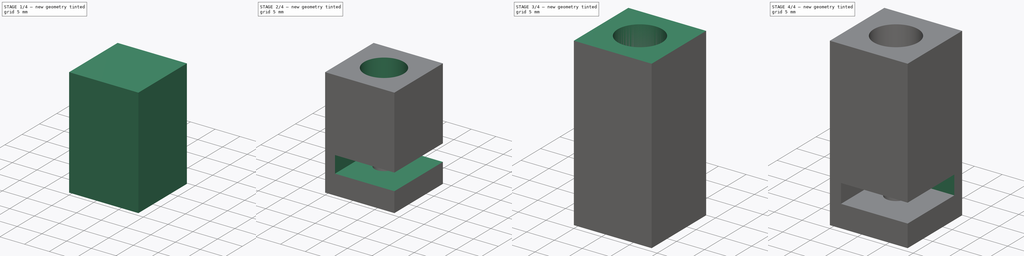
[diagram: build sequence overview — one tinted view per stage of 4, left to right]
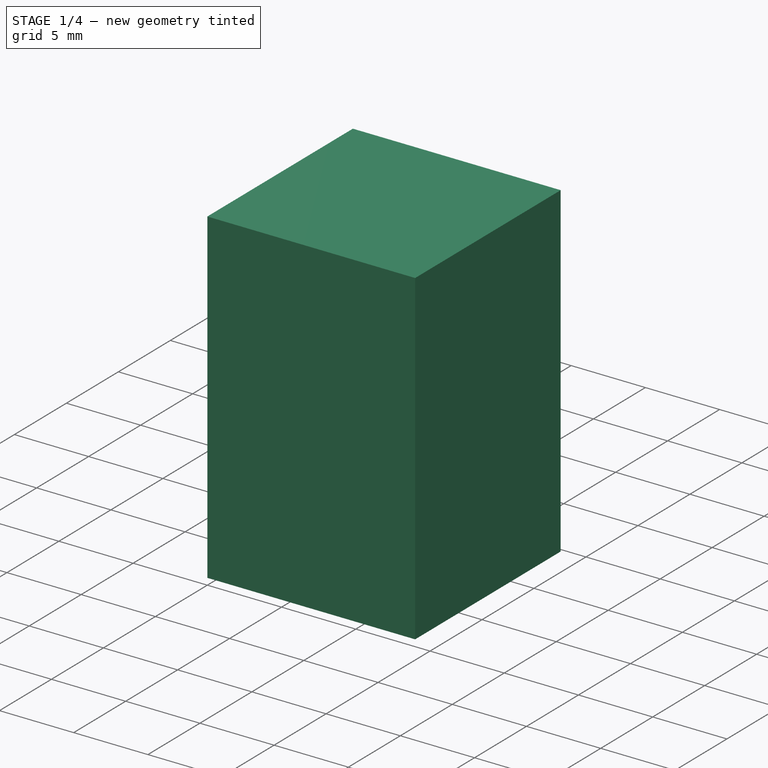
[diagram: stage 1 of 4 — iso view after this stage's code; geometry added in this stage tinted green]
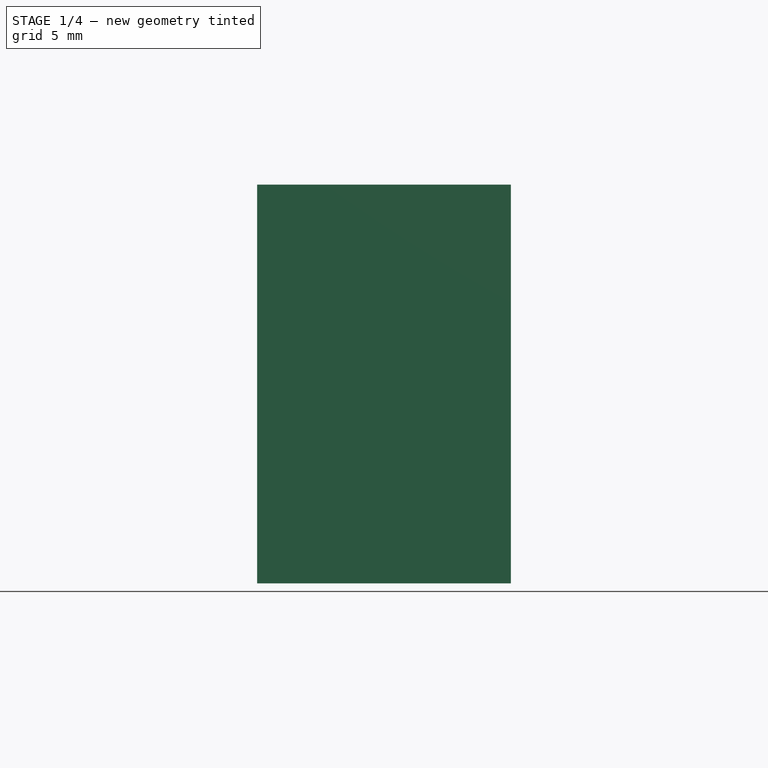
[diagram: stage 1 of 4 — front view after this stage's code; geometry added in this stage tinted green]
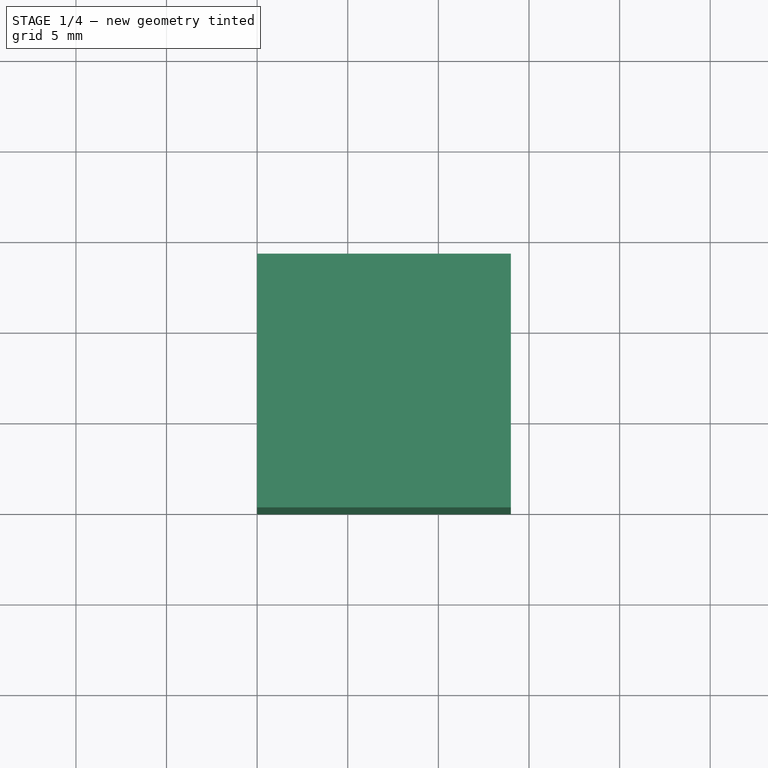
[diagram: stage 1 of 4 — top view after this stage's code; geometry added in this stage tinted green]
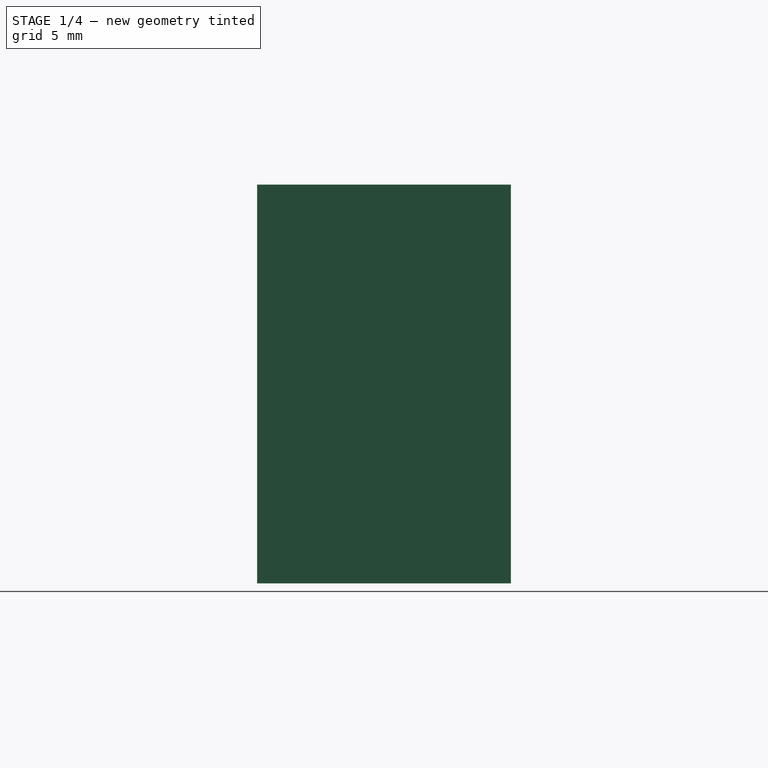
[diagram: stage 1 of 4 — right view after this stage's code; geometry added in this stage tinted green]
FCSTD DOCUMENT  (FreeCAD 0.16R6712 (Git))
Label: Calcio Mesa Aquecida
License: All rights reserved
LicenseURL: http://en.wikipedia.org/wiki/All_rights_reserved
objects: Sketcher::SketchObject×8, PartDesign::Pocket×8, Part::Box×2, App::DocumentObjectGroup×2
note: 26 computed .brp shape members not serialized (recipe doc carries the construction recipe); baked Part::Feature solids carry a one-line shape summary decoded from their .brp

FEATURE [Part::Box] Box001  label="Cube001"
  Height = 22
  Length = 14
  Width = 14
FEATURE [Sketcher::SketchObject] Sketch004
  ExternalGeometry = -> [Box001]
  Placement = pos=(0,0,0) rot=(1,0,0;3.14159rad)
  Support = -> Box001 [Face5]
  sketch-geometry (1):
    g0: Circle CenterX=7 CenterY=-7 CenterZ=0 NormalX=0 NormalY=0 NormalZ=1 Radius=1.9
  constraints (2):
    c: Radius(g0) = 1.9
    c: Symmetric(g-3,g-4,g0)
FEATURE [PartDesign::Pocket] Pocket004
  Length = 17.5
  Sketch = -> Sketch004
  Type = 0
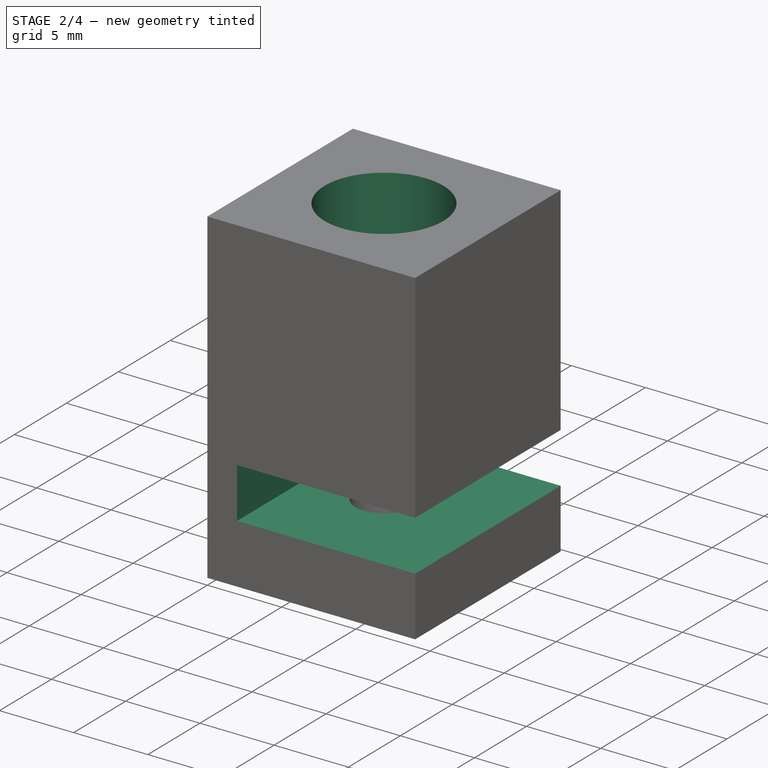
[diagram: stage 2 of 4 — iso view after this stage's code; geometry added in this stage tinted green]
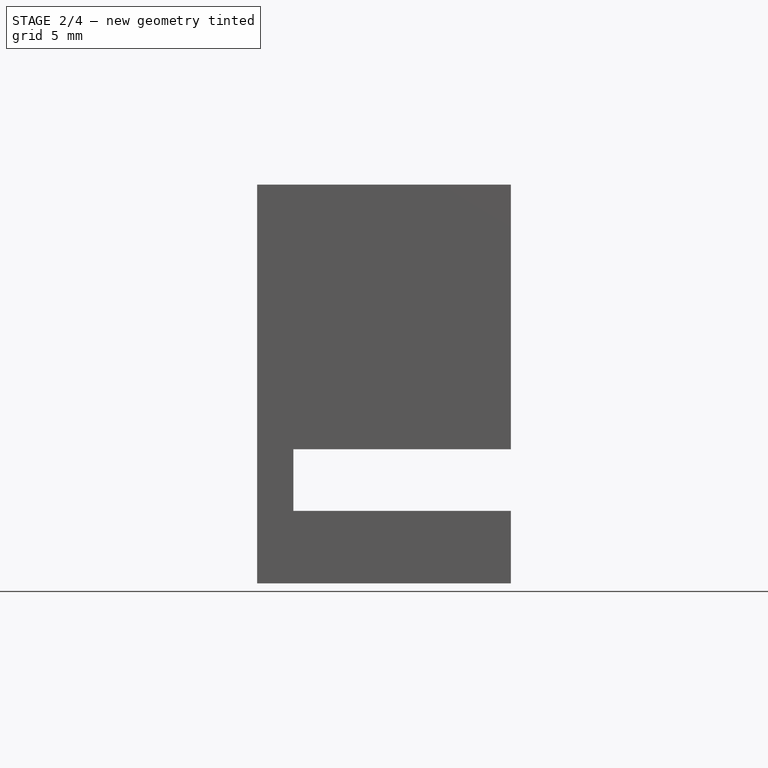
[diagram: stage 2 of 4 — front view after this stage's code; geometry added in this stage tinted green]
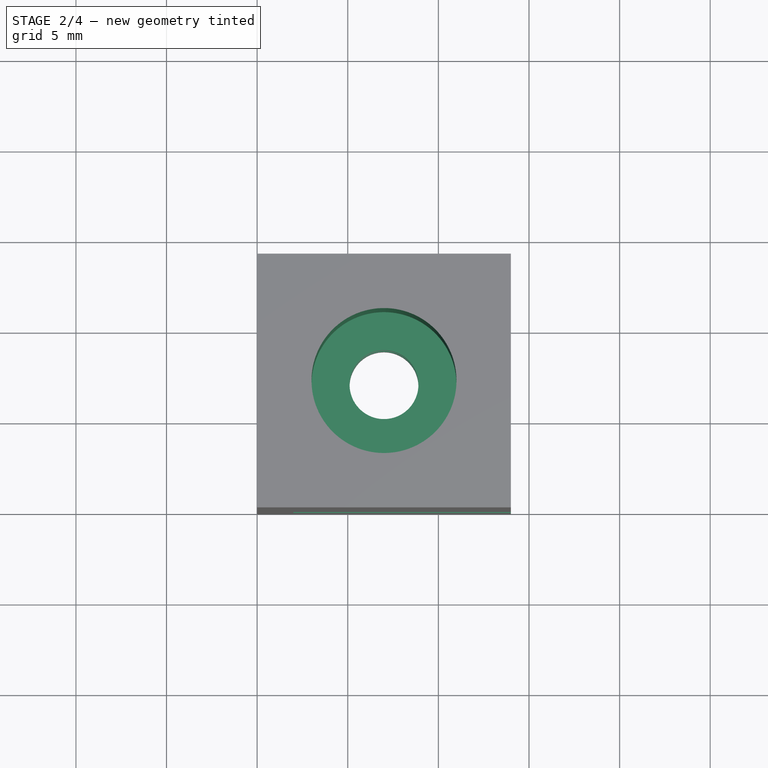
[diagram: stage 2 of 4 — top view after this stage's code; geometry added in this stage tinted green]
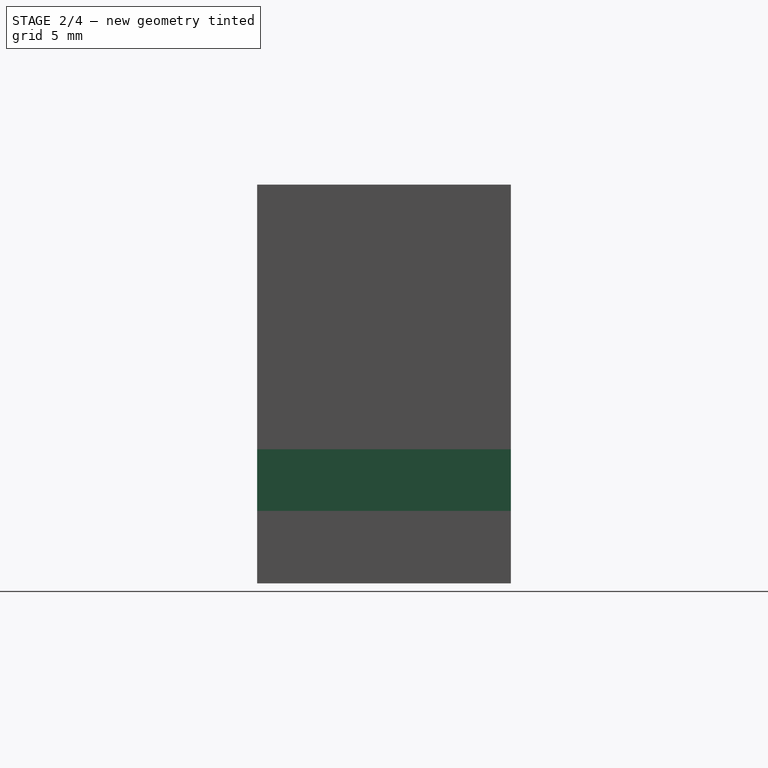
[diagram: stage 2 of 4 — right view after this stage's code; geometry added in this stage tinted green]
FEATURE [Sketcher::SketchObject] Sketch005
  ExternalGeometry = -> [Pocket004]
  Placement = pos=(0,0,22) rot=(0,0,1;0rad)
  Support = -> Pocket004 [Face3]
  sketch-geometry (1):
    g0: Circle CenterX=7 CenterY=7 CenterZ=0 NormalX=0 NormalY=0 NormalZ=1 Radius=4
  constraints (2):
    c: Radius(g0) = 4
    c: Symmetric(g-1,g-4,g0)
FEATURE [PartDesign::Pocket] Pocket005
  Length = 13
  Sketch = -> Sketch005
  Type = 0
FEATURE [Sketcher::SketchObject] Sketch006
  Placement = pos=(0,0,0) rot=(1,0,0;1.5708rad)
  Support = -> Pocket005 [Face2]
  sketch-geometry (4):
    g0: LineSegment StartX=2 StartY=7.4 StartZ=0 EndX=17.1972 EndY=7.4 EndZ=0
    g1: LineSegment StartX=17.1972 StartY=7.4 StartZ=0 EndX=17.1972 EndY=4 EndZ=0
    g2: LineSegment StartX=17.1972 StartY=4 StartZ=0 EndX=2 EndY=4 EndZ=0
    g3: LineSegment StartX=2 StartY=4 StartZ=0 EndX=2 EndY=7.4 EndZ=0
  constraints (11):
    c: Coincident(g0,g1)
    c: Coincident(g1,g2)
    c: Coincident(g2,g3)
    c: Coincident(g3,g0)
    c: Horizontal(g0)
    c: Horizontal(g2)
    c: Vertical(g1)
    c: Vertical(g3)
    c: DistanceY(g-1,g2) = 4
    c: DistanceY(g1,g1) = 3.4
    c: DistanceX(g-1,g2) = 2
FEATURE [PartDesign::Pocket] Pocket006
  Length = 15
  Sketch = -> Sketch006
  Type = 0
FEATURE [Sketcher::SketchObject] Sketch007
  ExternalGeometry = -> [Pocket006]
  Placement = pos=(0,0,0) rot=(1,0,0;3.14159rad)
  Support = -> Pocket006 [Face5]
  sketch-geometry (7):
    g0: LineSegment StartX=5.4 StartY=-4.22872 StartZ=0 EndX=3.8 EndY=-7 EndZ=0
    g1: LineSegment StartX=3.8 StartY=-7 StartZ=0 EndX=5.4 EndY=-9.77128 EndZ=0
    g2: LineSegment StartX=5.4 StartY=-9.77128 StartZ=0 EndX=8.6 EndY=-9.77128 EndZ=0
    g3: LineSegment StartX=8.6 StartY=-9.77128 StartZ=0 EndX=10.2 EndY=-7 EndZ=0
    g4: LineSegment StartX=10.2 StartY=-7 StartZ=0 EndX=8.6 EndY=-4.22872 EndZ=0
    g5: LineSegment StartX=8.6 StartY=-4.22872 StartZ=0 EndX=5.4 EndY=-4.22872 EndZ=0
    g6: Circle [constr] CenterX=7 CenterY=-7 CenterZ=0 NormalX=0 NormalY=0 NormalZ=1 Radius=3.2
  constraints (16):
    c: Coincident(g0,g1)
    c: Coincident(g1,g2)
    c: Coincident(g2,g3)
    c: Coincident(g3,g4)
    c: Coincident(g4,g5)
    c: Coincident(g5,g0)
    c: Equal(g0, g1-g5) x5
    c: PointOnObject(g0,g6)
    c: PointOnObject(g1,g6)
    c: PointOnObject(g2,g6)
    c: PointOnObject(g3,g6)
    c: PointOnObject(g4,g6)
    c: PointOnObject(g5,g6)
    c: Radius(g6) = 3.2
    c: Parallel(g5,g-3)
    c: Symmetric(g-4,g-3,g6)
FEATURE [PartDesign::Pocket] Pocket007
  Length = 2
  Sketch = -> Sketch007
  Type = 0
FEATURE [App::DocumentObjectGroup] Group  label="Quina"
  Group = -> [Box,Pocket,Pocket001,Pocket002,Pocket003]
FEATURE [App::DocumentObjectGroup] Group001  label="Canto"
  Group = -> [Box001,Pocket004,Pocket005,Pocket006,Pocket007]
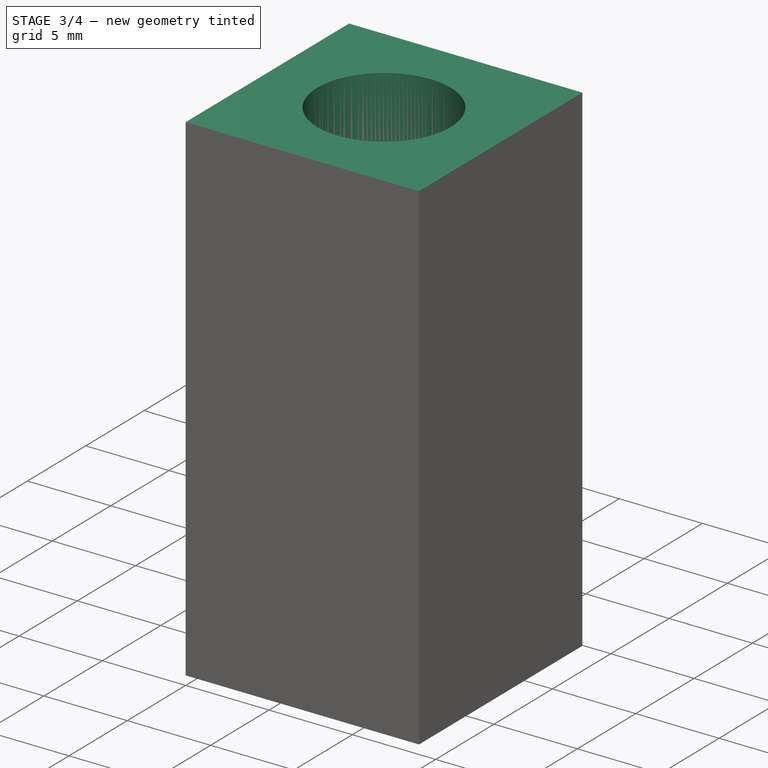
[diagram: stage 3 of 4 — iso view after this stage's code; geometry added in this stage tinted green]
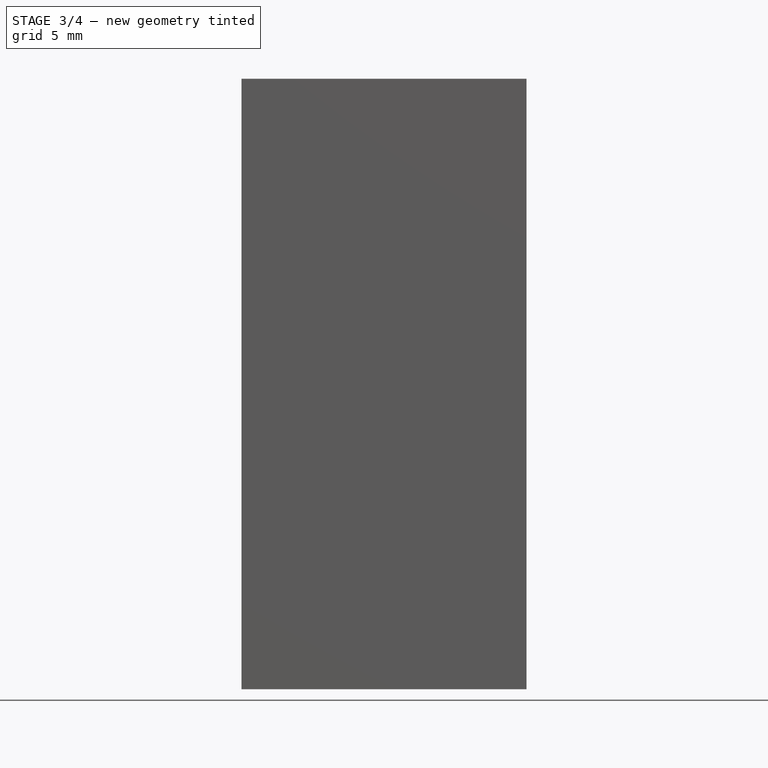
[diagram: stage 3 of 4 — front view after this stage's code; geometry added in this stage tinted green]
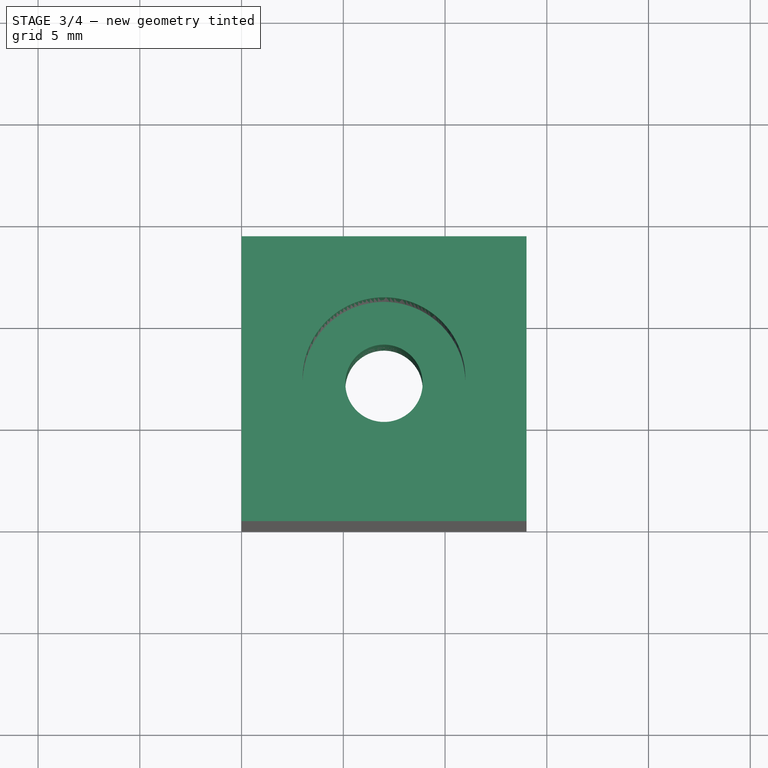
[diagram: stage 3 of 4 — top view after this stage's code; geometry added in this stage tinted green]
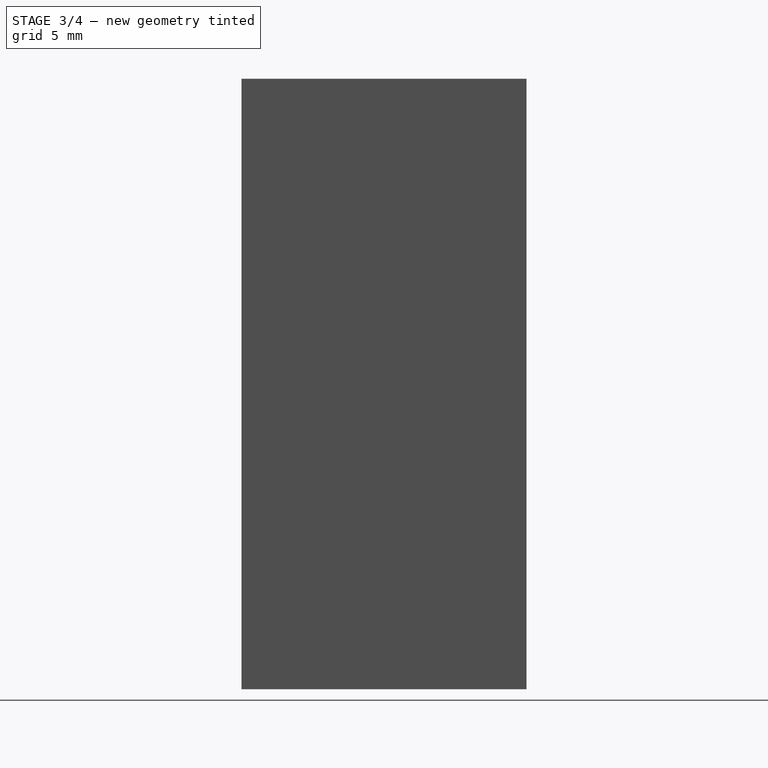
[diagram: stage 3 of 4 — right view after this stage's code; geometry added in this stage tinted green]
FEATURE [Part::Box] Box  label="Cube"
  Height = 30
  Length = 14
  Width = 14
FEATURE [Sketcher::SketchObject] Sketch
  ExternalGeometry = -> [Box]
  Placement = pos=(0,0,0) rot=(1,0,0;3.14159rad)
  Support = -> Box [Face5]
  sketch-geometry (1):
    g0: Circle CenterX=7 CenterY=-7 CenterZ=0 NormalX=0 NormalY=0 NormalZ=1 Radius=1.9
  constraints (2):
    c: Radius(g0) = 1.9
    c: Symmetric(g-3,g-4,g0)
FEATURE [PartDesign::Pocket] Pocket
  Length = 17.5
  Sketch = -> Sketch
  Type = 0
FEATURE [Sketcher::SketchObject] Sketch001
  ExternalGeometry = -> [Pocket]
  Placement = pos=(0,0,30) rot=(0,0,1;0rad)
  Support = -> Pocket [Face3]
  sketch-geometry (1):
    g0: Circle CenterX=7 CenterY=7 CenterZ=0 NormalX=0 NormalY=0 NormalZ=1 Radius=4
  constraints (2):
    c: Radius(g0) = 4
    c: Symmetric(g-1,g-4,g0)
FEATURE [PartDesign::Pocket] Pocket001
  Length = 13
  Sketch = -> Sketch001
  Type = 0
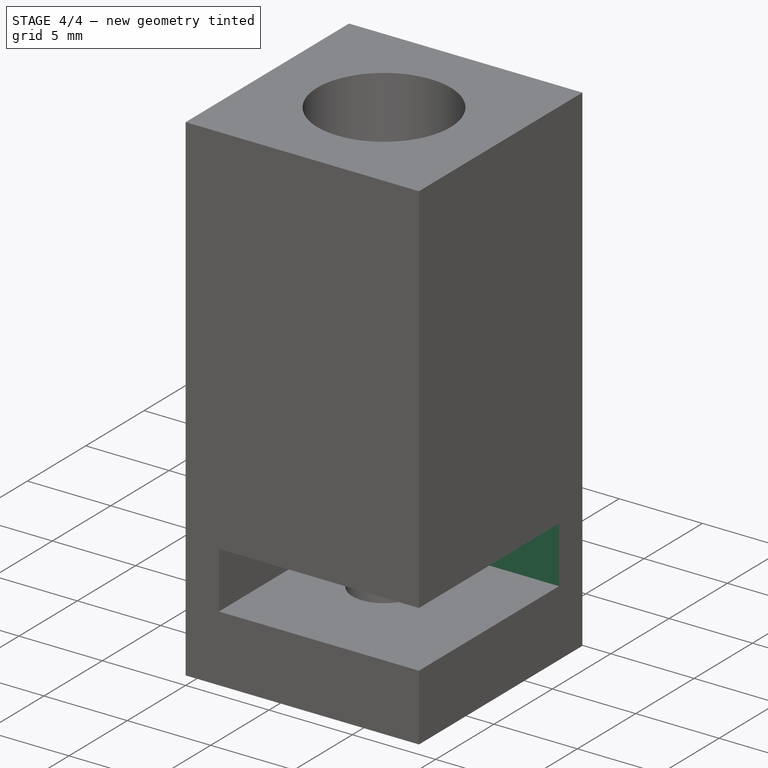
[diagram: stage 4 of 4 — iso view after this stage's code; geometry added in this stage tinted green]
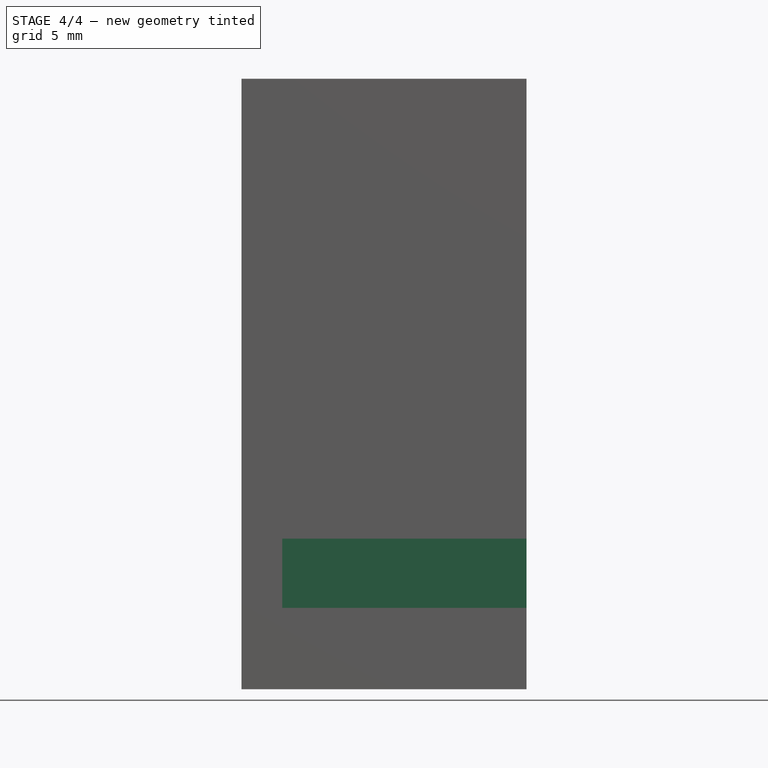
[diagram: stage 4 of 4 — front view after this stage's code; geometry added in this stage tinted green]
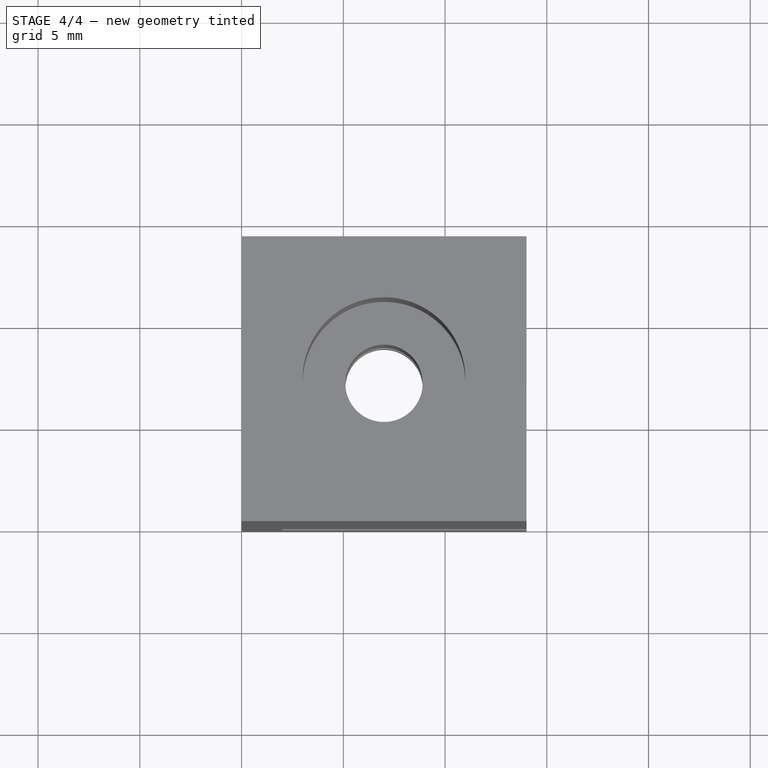
[diagram: stage 4 of 4 — top view after this stage's code; geometry added in this stage tinted green]
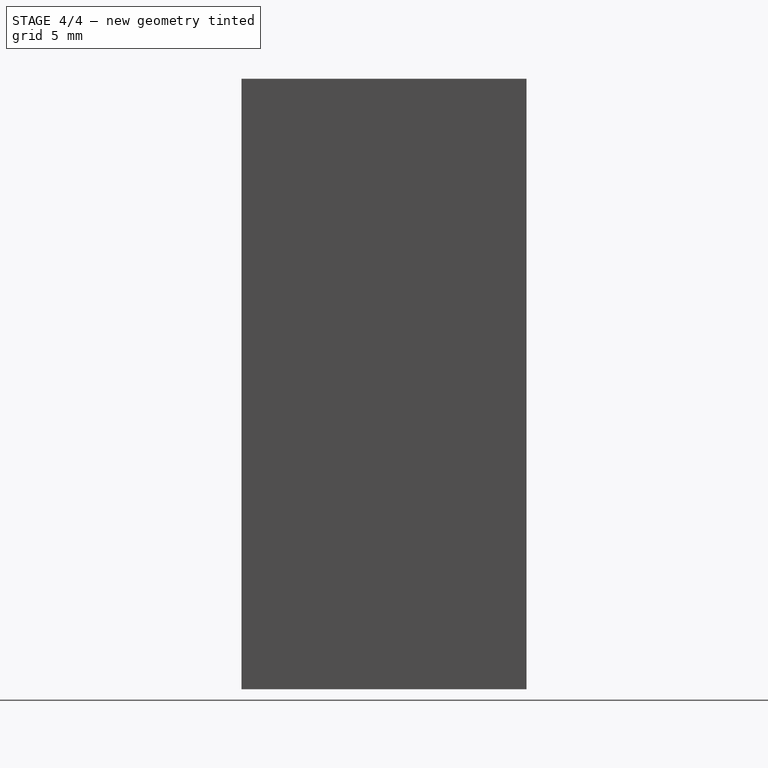
[diagram: stage 4 of 4 — right view after this stage's code; geometry added in this stage tinted green]
FEATURE [Sketcher::SketchObject] Sketch002
  Placement = pos=(0,0,0) rot=(1,0,0;1.5708rad)
  Support = -> Pocket001 [Face2]
  sketch-geometry (4):
    g0: LineSegment StartX=2 StartY=7.4 StartZ=0 EndX=14.465 EndY=7.4 EndZ=0
    g1: LineSegment StartX=14.465 StartY=7.4 StartZ=0 EndX=14.465 EndY=4 EndZ=0
    g2: LineSegment StartX=14.465 StartY=4 StartZ=0 EndX=2 EndY=4 EndZ=0
    g3: LineSegment StartX=2 StartY=4 StartZ=0 EndX=2 EndY=7.4 EndZ=0
  constraints (11):
    c: Coincident(g0,g1)
    c: Coincident(g1,g2)
    c: Coincident(g2,g3)
    c: Coincident(g3,g0)
    c: Horizontal(g0)
    c: Horizontal(g2)
    c: Vertical(g1)
    c: Vertical(g3)
    c: DistanceY(g-1,g2) = 4
    c: DistanceY(g1,g1) = 3.4
    c: DistanceX(g-1,g2) = 2
FEATURE [PartDesign::Pocket] Pocket002
  Length = 12
  Sketch = -> Sketch002
  Type = 0
FEATURE [Sketcher::SketchObject] Sketch003
  ExternalGeometry = -> [Pocket002]
  Placement = pos=(0,0,0) rot=(1,0,0;3.14159rad)
  Support = -> Pocket002 [Face5]
  sketch-geometry (7):
    g0: LineSegment StartX=5.4 StartY=-4.22872 StartZ=0 EndX=3.8 EndY=-7 EndZ=0
    g1: LineSegment StartX=3.8 StartY=-7 StartZ=0 EndX=5.4 EndY=-9.77128 EndZ=0
    g2: LineSegment StartX=5.4 StartY=-9.77128 StartZ=0 EndX=8.6 EndY=-9.77128 EndZ=0
    g3: LineSegment StartX=8.6 StartY=-9.77128 StartZ=0 EndX=10.2 EndY=-7 EndZ=0
    g4: LineSegment StartX=10.2 StartY=-7 StartZ=0 EndX=8.6 EndY=-4.22872 EndZ=0
    g5: LineSegment StartX=8.6 StartY=-4.22872 StartZ=0 EndX=5.4 EndY=-4.22872 EndZ=0
    g6: Circle [constr] CenterX=7 CenterY=-7 CenterZ=0 NormalX=0 NormalY=0 NormalZ=1 Radius=3.2
  constraints (16):
    c: Coincident(g0,g1)
    c: Coincident(g1,g2)
    c: Coincident(g2,g3)
    c: Coincident(g3,g4)
    c: Coincident(g4,g5)
    c: Coincident(g5,g0)
    c: Equal(g0, g1-g5) x5
    c: PointOnObject(g0,g6)
    c: PointOnObject(g1,g6)
    c: PointOnObject(g2,g6)
    c: PointOnObject(g3,g6)
    c: PointOnObject(g4,g6)
    c: PointOnObject(g5,g6)
    c: Radius(g6) = 3.2
    c: Parallel(g5,g-3)
    c: Symmetric(g-4,g-3,g6)
FEATURE [PartDesign::Pocket] Pocket003
  Length = 2
  Sketch = -> Sketch003
  Type = 0
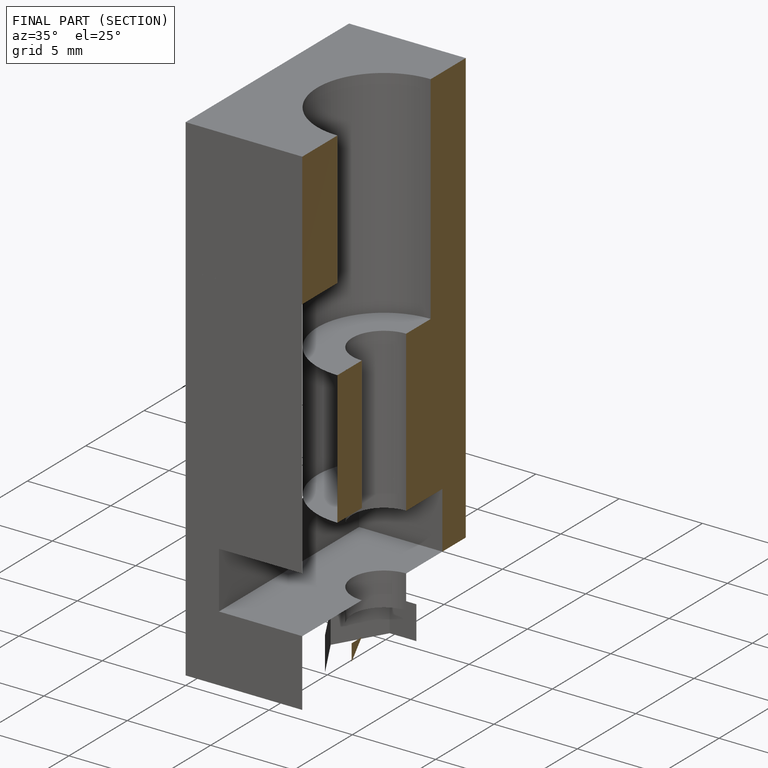
[diagram: finished part — half-section view (interior)]
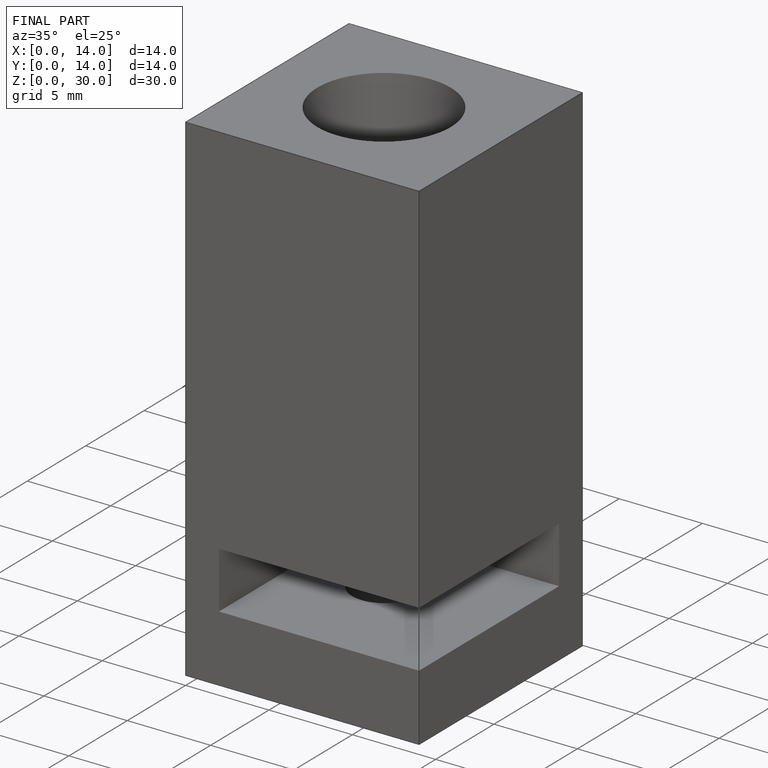
[diagram: finished part — iso view with bounding-box wireframe]
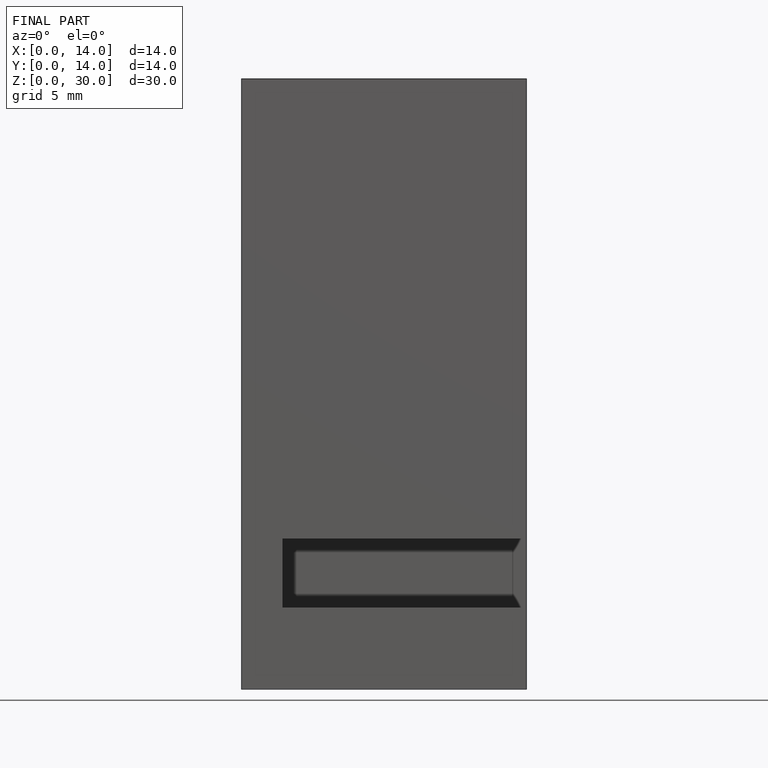
[diagram: finished part — front view with bounding-box wireframe]
